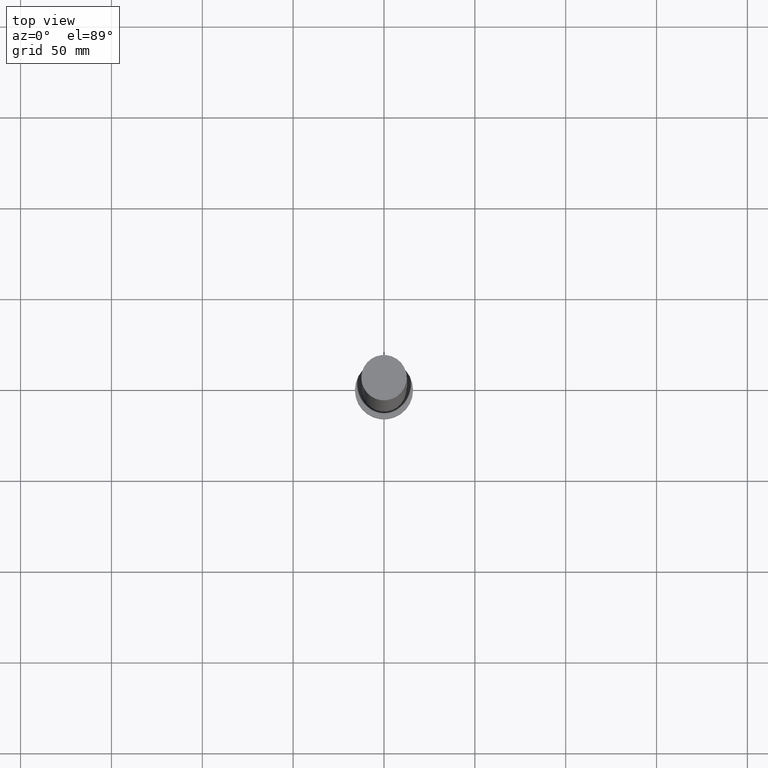
[diagram: clean part render]
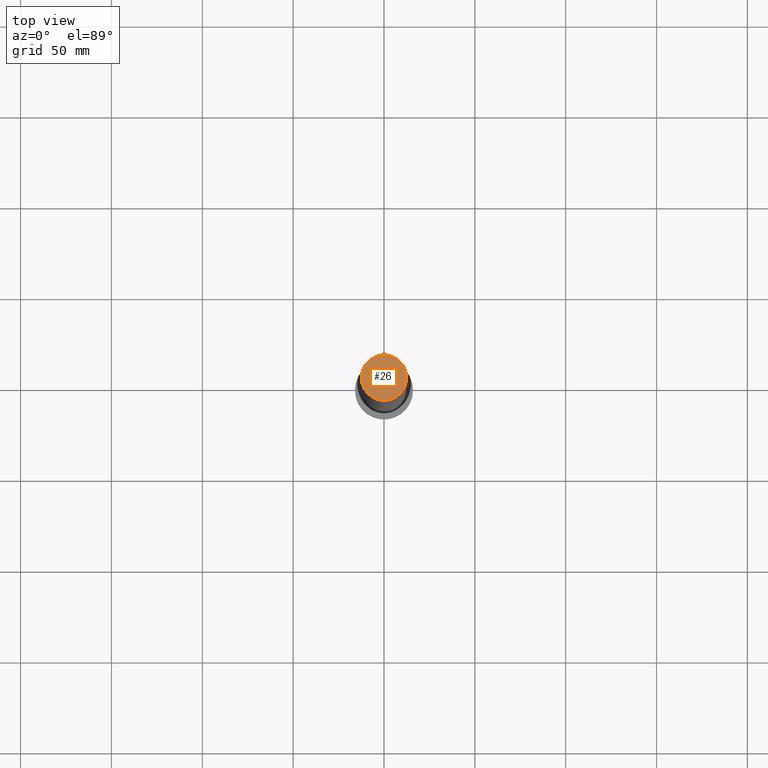
[diagram: same view with one face highlighted and labeled with its STEP entity id]
A machine part, top view. The second image highlights one B-rep face of the part: STEP entity #26.
In plain terms, the highlighted planar face has unit normal (0, 0, 1).
Its self-contained STEP definition (entity closure, byte-faithful):
#2 = DIRECTION ( 'NONE',  ( 0.000000000000000000, 0.000000000000000000, 1.000000000000000000 ) ) ;
#26 = ADVANCED_FACE ( 'NONE', ( #211 ), #58, .T. ) ;
#39 = EDGE_CURVE ( 'NONE', #238, #249, #68, .T. ) ;
#48 = ORIENTED_EDGE ( 'NONE', *, *, #245, .T. ) ;
#52 = CARTESIAN_POINT ( 'NONE',  ( 0.000000000000000000, 0.000000000000000000, 400.0000000000000000 ) ) ;
#58 = PLANE ( 'NONE',  #114 ) ;
#63 = CARTESIAN_POINT ( 'NONE',  ( -12.50000000000000000, 0.000000000000000000, 400.0000000000000000 ) ) ;
#68 = CIRCLE ( 'NONE', #218, 12.50000000000000000 ) ;
#78 = DIRECTION ( 'NONE',  ( 1.000000000000000000, 0.000000000000000000, -0.000000000000000000 ) ) ;
#91 = CARTESIAN_POINT ( 'NONE',  ( 12.50000000000000000, 1.530808498934191521E-15, 400.0000000000000000 ) ) ;
#114 = AXIS2_PLACEMENT_3D ( 'NONE', #138, #2, #78 ) ;
#138 = CARTESIAN_POINT ( 'NONE',  ( 0.000000000000000000, 0.000000000000000000, 400.0000000000000000 ) ) ;
#169 = DIRECTION ( 'NONE',  ( 0.000000000000000000, 0.000000000000000000, 1.000000000000000000 ) ) ;
#171 = CARTESIAN_POINT ( 'NONE',  ( 0.000000000000000000, 0.000000000000000000, 400.0000000000000000 ) ) ;
#197 = DIRECTION ( 'NONE',  ( 1.000000000000000000, 0.000000000000000000, 0.000000000000000000 ) ) ;
#207 = ORIENTED_EDGE ( 'NONE', *, *, #39, .T. ) ;
#211 = FACE_OUTER_BOUND ( 'NONE', #252, .T. ) ;
#214 = AXIS2_PLACEMENT_3D ( 'NONE', #171, #253, #197 ) ;
#218 = AXIS2_PLACEMENT_3D ( 'NONE', #52, #169, #223 ) ;
#219 = CIRCLE ( 'NONE', #214, 12.50000000000000000 ) ;
#223 = DIRECTION ( 'NONE',  ( 1.000000000000000000, 0.000000000000000000, 0.000000000000000000 ) ) ;
#238 = VERTEX_POINT ( 'NONE', #91 ) ;
#245 = EDGE_CURVE ( 'NONE', #249, #238, #219, .T. ) ;
#249 = VERTEX_POINT ( 'NONE', #63 ) ;
#252 = EDGE_LOOP ( 'NONE', ( #48, #207 ) ) ;
#253 = DIRECTION ( 'NONE',  ( 0.000000000000000000, 0.000000000000000000, 1.000000000000000000 ) ) ;